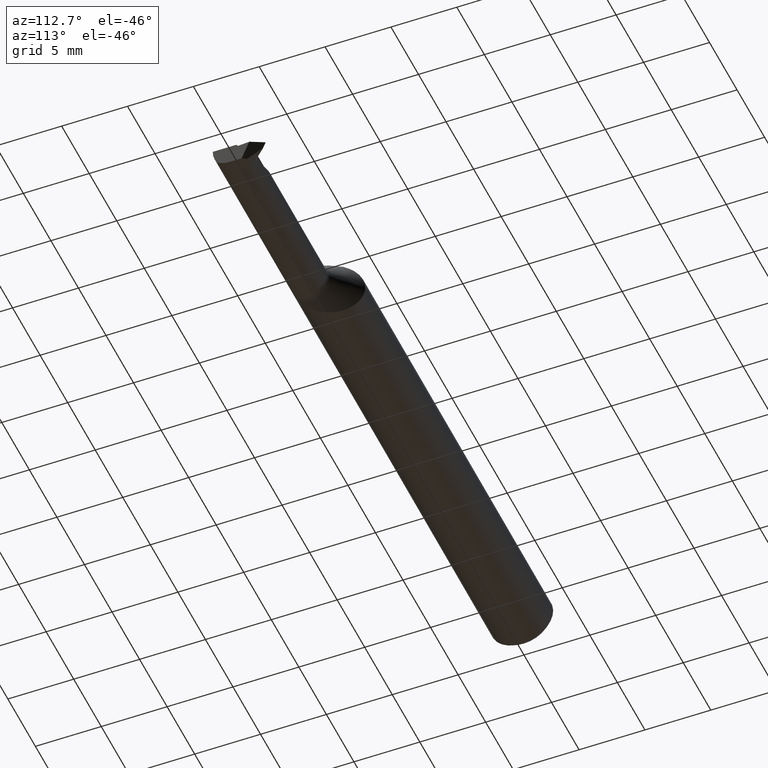
[diagram: clean part render]
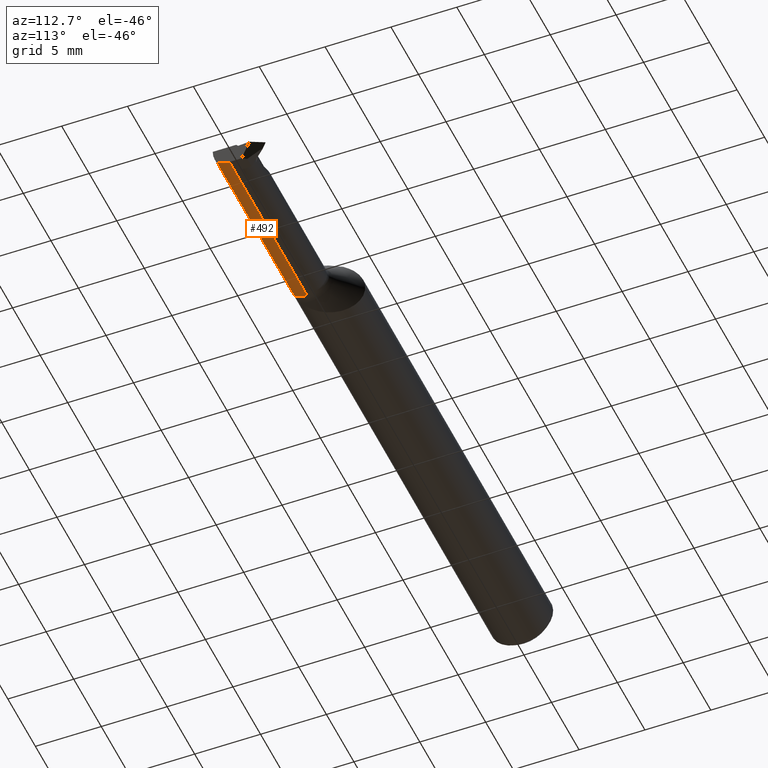
[diagram: same view with one face highlighted and labeled with its STEP entity id]
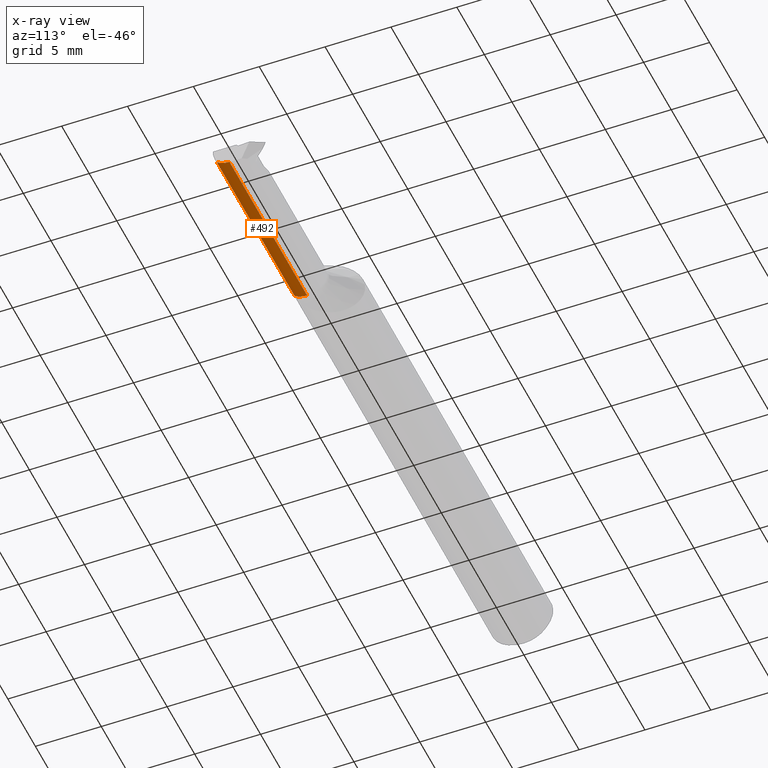
[diagram: x-ray of the same camera — body ghosted, the highlighted face saturated]
A machine part, auxiliary view. The second image highlights one B-rep face of the part: STEP entity #492.
The next image is the same camera in x-ray: the body ghosted, the highlighted face saturated — about 0% of this face is hidden behind the body in this view.
In plain terms, the highlighted cylindrical surface (edge-blend (fillet) strip) has radius 1.524 mm, axis along (-1, -0, -0).
Its self-contained STEP definition (entity closure, byte-faithful):
#6 = DIRECTION ( 'NONE',  ( 1.000000000000000000, 0.000000000000000000, 0.000000000000000000 ) ) ;
#94 = VERTEX_POINT ( 'NONE', #281 ) ;
#97 = VERTEX_POINT ( 'NONE', #852 ) ;
#107 = FACE_OUTER_BOUND ( 'NONE', #807, .T. ) ;
#114 = DIRECTION ( 'NONE',  ( 1.000000000000000000, -0.000000000000000000, -0.000000000000000000 ) ) ;
#123 = VECTOR ( 'NONE', #859, 39.37007874015748143 ) ;
#153 = AXIS2_PLACEMENT_3D ( 'NONE', #731, #6, #320 ) ;
#162 = CARTESIAN_POINT ( 'NONE',  ( 1.445355339059327227, -0.08098532110091744007, -0.04692907165266853309 ) ) ;
#179 = ORIENTED_EDGE ( 'NONE', *, *, #473, .T. ) ;
#183 = CARTESIAN_POINT ( 'NONE',  ( 1.692500000000000115, -0.08098532110091744007, -0.04692907165266853309 ) ) ;
#190 = ORIENTED_EDGE ( 'NONE', *, *, #841, .F. ) ;
#204 = CYLINDRICAL_SURFACE ( 'NONE', #205, 0.05999999999999999778 ) ;
#205 = AXIS2_PLACEMENT_3D ( 'NONE', #437, #677, #534 ) ;
#232 = CARTESIAN_POINT ( 'NONE',  ( 2.000000000000000000, -0.04360000000000001374, -0.06000000000000001860 ) ) ;
#281 = CARTESIAN_POINT ( 'NONE',  ( 1.445355339059327227, -0.04359999999999999987, -0.05999999999999999778 ) ) ;
#285 = ORIENTED_EDGE ( 'NONE', *, *, #1047, .F. ) ;
#296 = EDGE_CURVE ( 'NONE', #665, #918, #545, .T. ) ;
#320 = DIRECTION ( 'NONE',  ( 0.000000000000000000, 1.707404996040164561E-15, 1.000000000000000000 ) ) ;
#339 = CIRCLE ( 'NONE', #153, 0.05999999999999999778 ) ;
#388 = VERTEX_POINT ( 'NONE', #162 ) ;
#421 = VECTOR ( 'NONE', #942, 39.37007874015748143 ) ;
#433 = LINE ( 'NONE', #183, #123 ) ;
#437 = CARTESIAN_POINT ( 'NONE',  ( 1.434999999999999831, -0.04360000000000000681, 0.000000000000000000 ) ) ;
#449 = CARTESIAN_POINT ( 'NONE',  ( 1.434999999999999831, -0.04359999999999999987, -0.05999999999999999778 ) ) ;
#473 = EDGE_CURVE ( 'NONE', #388, #94, #339, .T. ) ;
#492 = ADVANCED_FACE ( 'NONE', ( #107 ), #204, .T. ) ;
#534 = DIRECTION ( 'NONE',  ( 0.000000000000000000, 0.000000000000000000, 1.000000000000000000 ) ) ;
#545 = LINE ( 'NONE', #232, #972 ) ;
#577 = AXIS2_PLACEMENT_3D ( 'NONE', #1028, #114, #603 ) ;
#586 = ORIENTED_EDGE ( 'NONE', *, *, #296, .F. ) ;
#592 = CIRCLE ( 'NONE', #577, 0.06000000000000001166 ) ;
#603 = DIRECTION ( 'NONE',  ( 0.000000000000000000, 0.000000000000000000, 1.000000000000000000 ) ) ;
#665 = VERTEX_POINT ( 'NONE', #977 ) ;
#676 = CARTESIAN_POINT ( 'NONE',  ( 1.961119976209501070, -0.04360000000000001374, -0.06000000000000001166 ) ) ;
#677 = DIRECTION ( 'NONE',  ( -1.000000000000000000, -0.000000000000000000, -0.000000000000000000 ) ) ;
#731 = CARTESIAN_POINT ( 'NONE',  ( 1.445355339059327227, -0.04360000000000000681, 0.000000000000000000 ) ) ;
#803 = DIRECTION ( 'NONE',  ( -1.000000000000000000, -0.000000000000000000, -0.000000000000000000 ) ) ;
#807 = EDGE_LOOP ( 'NONE', ( #190, #586, #285, #891, #179 ) ) ;
#841 = EDGE_CURVE ( 'NONE', #918, #94, #1018, .T. ) ;
#852 = CARTESIAN_POINT ( 'NONE',  ( 2.000000000000000000, -0.08098532110091745395, -0.04692907165266857472 ) ) ;
#859 = DIRECTION ( 'NONE',  ( -1.000000000000000000, -0.000000000000000000, -0.000000000000000000 ) ) ;
#891 = ORIENTED_EDGE ( 'NONE', *, *, #1061, .T. ) ;
#918 = VERTEX_POINT ( 'NONE', #676 ) ;
#942 = DIRECTION ( 'NONE',  ( -1.000000000000000000, -0.000000000000000000, -0.000000000000000000 ) ) ;
#972 = VECTOR ( 'NONE', #803, 39.37007874015748143 ) ;
#977 = CARTESIAN_POINT ( 'NONE',  ( 2.000000000000000000, -0.04360000000000001374, -0.06000000000000001860 ) ) ;
#1018 = LINE ( 'NONE', #449, #421 ) ;
#1028 = CARTESIAN_POINT ( 'NONE',  ( 2.000000000000000000, -0.04360000000000000681, 0.000000000000000000 ) ) ;
#1047 = EDGE_CURVE ( 'NONE', #97, #665, #592, .T. ) ;
#1061 = EDGE_CURVE ( 'NONE', #97, #388, #433, .T. ) ;